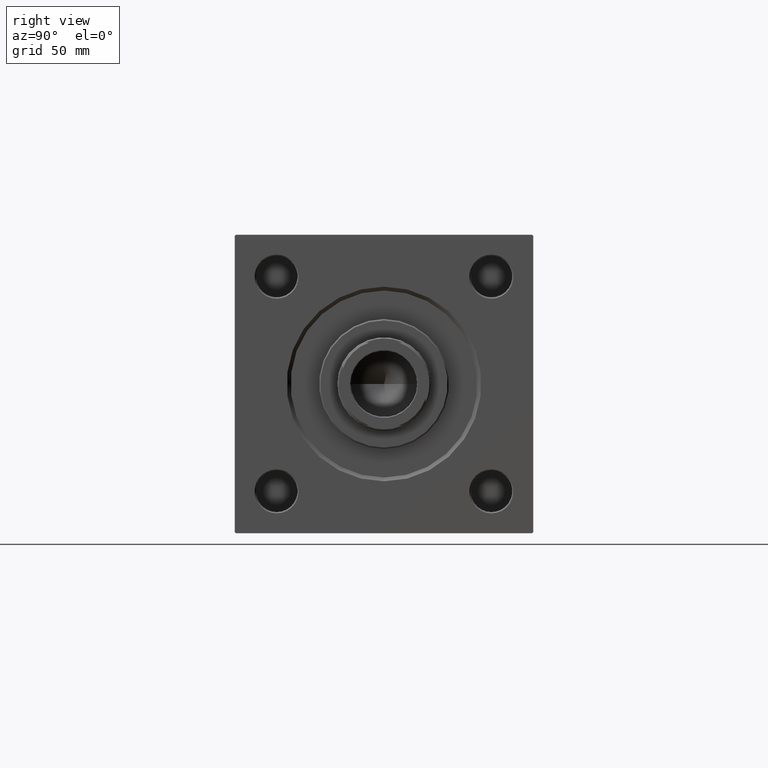
[diagram: clean part render]
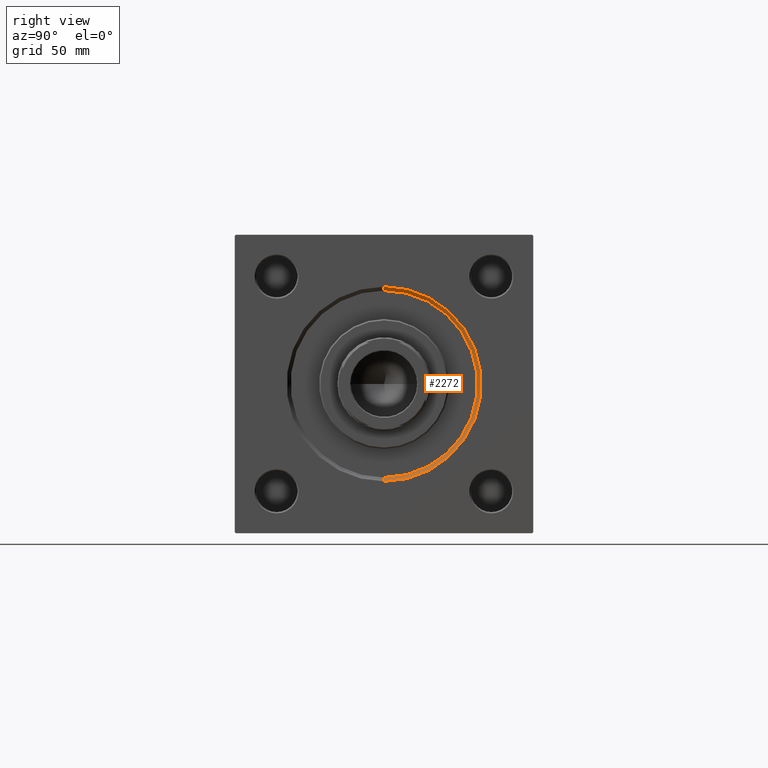
[diagram: same view with one face highlighted and labeled with its STEP entity id]
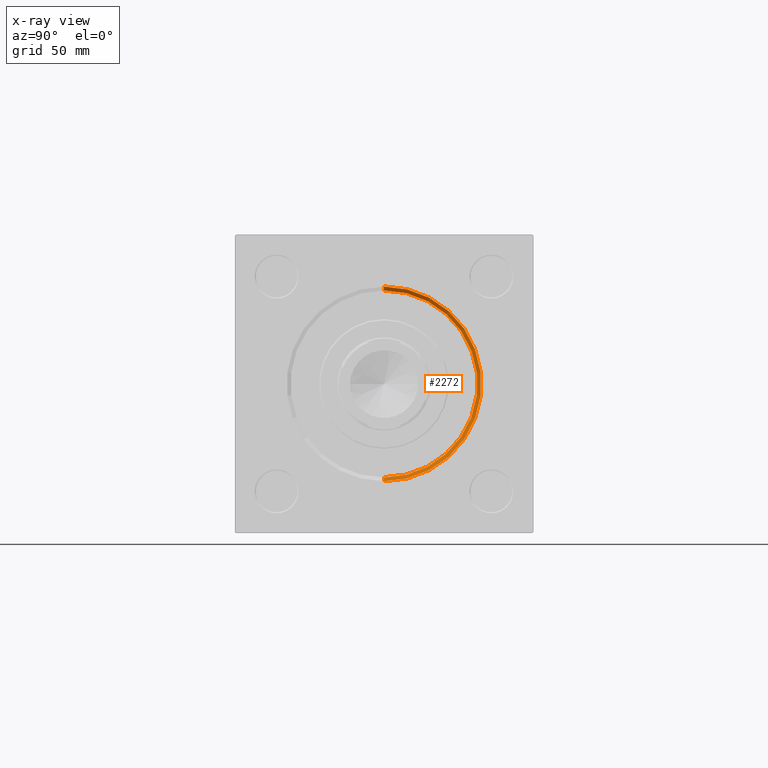
[diagram: x-ray of the same camera — body ghosted, the highlighted face saturated]
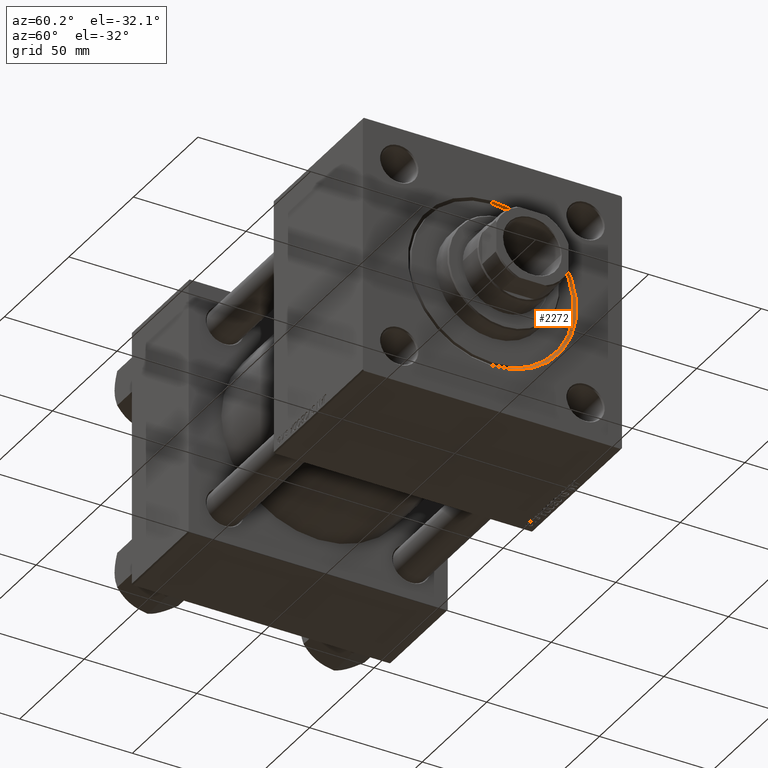
[diagram: same view with one face highlighted and labeled with its STEP entity id]
A machine part, right view. The second image highlights one B-rep face of the part: STEP entity #2272.
The next image is the same camera in x-ray: the body ghosted, the highlighted face saturated — about 0% of this face is hidden behind the body in this view.
A second angle (auxiliary view) of the same face is appended — the face is thin or edge-on in the first view.
In plain terms, the highlighted conical surface has half-angle 45 deg.
Its self-contained STEP definition (entity closure, byte-faithful):
#772 = CARTESIAN_POINT ( 'NONE',  ( 179.0000000000000000, 4.592425496802575156E-15, 37.50000000000000711 ) ) ;
#1664 = FACE_OUTER_BOUND ( 'NONE', #4648, .T. ) ;
#2272 = ADVANCED_FACE ( 'NONE', ( #1664 ), #7972, .F. ) ;
#2747 = VERTEX_POINT ( 'NONE', #20224 ) ;
#4438 = EDGE_CURVE ( 'NONE', #2747, #11320, #13636, .T. ) ;
#4648 = EDGE_LOOP ( 'NONE', ( #42438, #49420, #37657, #20157 ) ) ;
#7714 = AXIS2_PLACEMENT_3D ( 'NONE', #37193, #10046, #10565 ) ;
#7972 = CONICAL_SURFACE ( 'NONE', #26820, 36.00000000000000000, 0.7853981633974415066 ) ;
#8283 = CARTESIAN_POINT ( 'NONE',  ( 177.4999999999999716, 0.000000000000000000, -36.00000000000000000 ) ) ;
#8738 = DIRECTION ( 'NONE',  ( 0.7071067811865524577, 0.000000000000000000, -0.7071067811865426878 ) ) ;
#10038 = CARTESIAN_POINT ( 'NONE',  ( 177.4999999999999716, 4.408728476930470856E-15, 36.00000000000000000 ) ) ;
#10046 = DIRECTION ( 'NONE',  ( 1.000000000000000000, 0.000000000000000000, 0.000000000000000000 ) ) ;
#10564 = DIRECTION ( 'NONE',  ( 0.000000000000000000, 0.000000000000000000, -1.000000000000000000 ) ) ;
#10565 = DIRECTION ( 'NONE',  ( 0.000000000000000000, 0.000000000000000000, 1.000000000000000000 ) ) ;
#11320 = VERTEX_POINT ( 'NONE', #772 ) ;
#11342 = VECTOR ( 'NONE', #25682, 1000.000000000000000 ) ;
#12255 = EDGE_CURVE ( 'NONE', #41559, #2747, #16730, .T. ) ;
#12958 = DIRECTION ( 'NONE',  ( 1.000000000000000000, 0.000000000000000000, 0.000000000000000000 ) ) ;
#13636 = LINE ( 'NONE', #10038, #11342 ) ;
#16284 = CIRCLE ( 'NONE', #41611, 37.50000000000000711 ) ;
#16730 = CIRCLE ( 'NONE', #7714, 36.00000000000000000 ) ;
#20157 = ORIENTED_EDGE ( 'NONE', *, *, #28018, .F. ) ;
#20224 = CARTESIAN_POINT ( 'NONE',  ( 177.4999999999999716, 4.408728476930470856E-15, 36.00000000000000000 ) ) ;
#21906 = EDGE_CURVE ( 'NONE', #41559, #35138, #36163, .T. ) ;
#22788 = VECTOR ( 'NONE', #8738, 1000.000000000000000 ) ;
#23898 = CARTESIAN_POINT ( 'NONE',  ( 177.4999999999999716, 0.000000000000000000, -36.00000000000000000 ) ) ;
#25682 = DIRECTION ( 'NONE',  ( 0.7071067811865524577, 8.659560562354873694E-17, 0.7071067811865426878 ) ) ;
#26820 = AXIS2_PLACEMENT_3D ( 'NONE', #48266, #12958, #10564 ) ;
#27393 = DIRECTION ( 'NONE',  ( 0.000000000000000000, 0.000000000000000000, 1.000000000000000000 ) ) ;
#28018 = EDGE_CURVE ( 'NONE', #11320, #35138, #16284, .T. ) ;
#29176 = CARTESIAN_POINT ( 'NONE',  ( 179.0000000000000000, 0.000000000000000000, -37.50000000000000711 ) ) ;
#34050 = DIRECTION ( 'NONE',  ( -1.000000000000000000, 0.000000000000000000, -0.000000000000000000 ) ) ;
#35138 = VERTEX_POINT ( 'NONE', #29176 ) ;
#36163 = LINE ( 'NONE', #23898, #22788 ) ;
#37193 = CARTESIAN_POINT ( 'NONE',  ( 177.4999999999999716, 0.000000000000000000, 0.000000000000000000 ) ) ;
#37657 = ORIENTED_EDGE ( 'NONE', *, *, #21906, .T. ) ;
#41559 = VERTEX_POINT ( 'NONE', #8283 ) ;
#41611 = AXIS2_PLACEMENT_3D ( 'NONE', #41724, #34050, #27393 ) ;
#41724 = CARTESIAN_POINT ( 'NONE',  ( 179.0000000000000000, 0.000000000000000000, 0.000000000000000000 ) ) ;
#42438 = ORIENTED_EDGE ( 'NONE', *, *, #4438, .F. ) ;
#48266 = CARTESIAN_POINT ( 'NONE',  ( 177.4999999999999716, 0.000000000000000000, 0.000000000000000000 ) ) ;
#49420 = ORIENTED_EDGE ( 'NONE', *, *, #12255, .F. ) ;